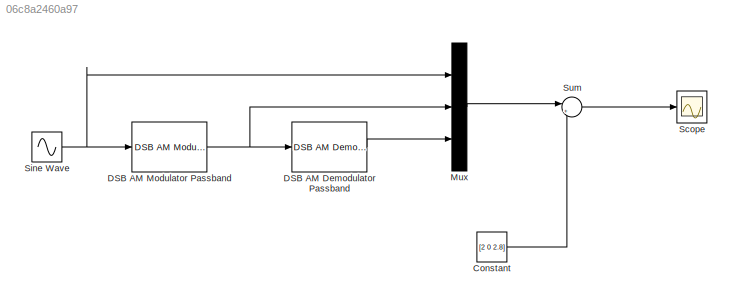
MODEL slx_06c8a2460a97
KIND model
CONFIG AbsTol = auto
CONFIG EnableMultiTasking = off
CONFIG FixedStep = auto
CONFIG MaxStep = auto
CONFIG MinStep = auto
CONFIG RelTol = 1e-3
CONFIG SampleTimeConstraint = Unconstrained
CONFIG Solver = VariableStepAuto
CONFIG SolverName = VariableStepAuto
CONFIG StartTime = 0.0
CONFIG StopTime = 3
BLOCK [Constant] Constant
  Value = [2 0 2.8]
BLOCK [Reference] DSB AM Demodulator Passband  REF=commanapbnd3/DSB AM
Demodulator
Passband
  Ports = [1, 1]
  SourceBlock = commanapbnd3/DSB AM\nDemodulator\nPassband
  SourceProductBaseCode = CM
  SourceProductName = Communications Toolbox
  SourceType = DSB AM Demodulator Passband
BLOCK [Reference] DSB AM Modulator Passband  REF=commanapbnd3/DSB AM
Modulator
Passband
  Ports = [1, 1]
  SourceBlock = commanapbnd3/DSB AM\nModulator\nPassband
  SourceProductBaseCode = CM
  SourceProductName = Communications Toolbox
  SourceType = DSB AM Modulator Passband
BLOCK [Mux] Mux
  DisplayOption = bar
  Inputs = 3
  Ports = [3, 1]
BLOCK [Scope] Scope
  Floating = off
  NumInputPorts = 1
  Ports = [1]
  ScopeSpecificationString = Simulink.scopes.TimeScopeBlockCfg('CurrentConfiguration', extmgr.ConfigurationSet(extmgr.Configuration('Core','General UI',true),extmgr.Configuration('Core','Source UI',true),extmgr.Configuration('Sources','WiredSimulink',true),extmgr.Configuration('Visuals','Time Domain',true,'SerializedDisplays',{struct('MinYLimReal','-2.18484','MaxYLimReal','4.13335','YLabelReal','','MinYLimMag','0.00000','MaxY...<+1369ch>
BLOCK [Sin] Sine Wave
  Amplitude = 0.7
  Frequency = 8
  Ports = [0, 1]
  SampleTime = 0.01
BLOCK [Sum] Sum
  IconShape = round
  InputSameDT = off
  Inputs = |++
  OutDataTypeStr = Inherit: Inherit via internal rule
  Ports = [2, 1]
  SaturateOnIntegerOverflow = off
LINE Constant:1 -> Sum:2
LINE DSB AM Demodulator Passband:1 -> Mux:3
NET DSB AM Modulator Passband:1 -> DSB AM Demodulator Passband:1, Mux:2
LINE Mux:1 -> Sum:1
NET Sine Wave:1 -> DSB AM Modulator Passband:1, Mux:1
LINE Sum:1 -> Scope:1
note: NET lines group one-source signal fan-out (src -> all destinations, sorted); 1:1 wires keep LINE
